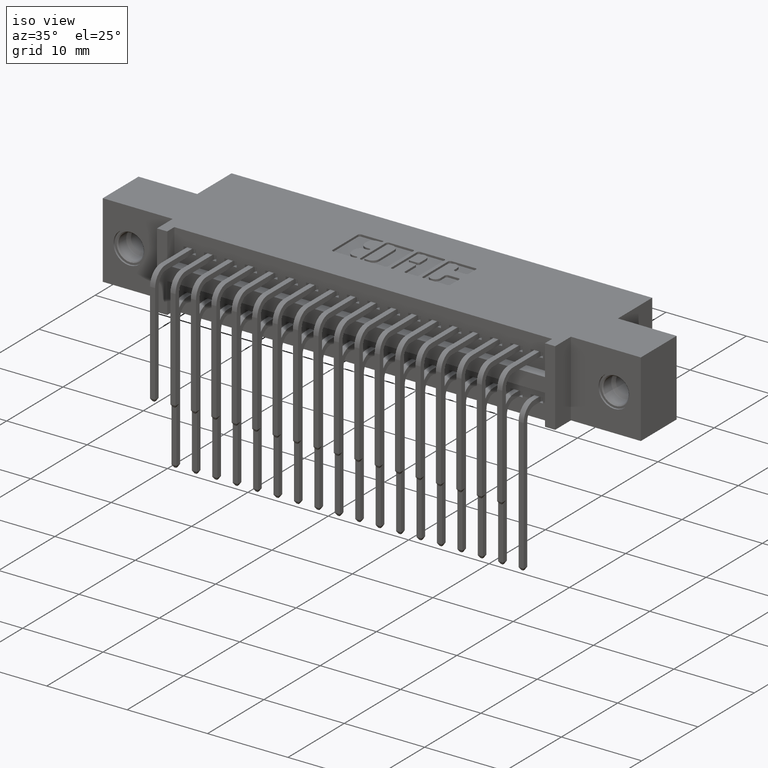
[diagram: clean part render]
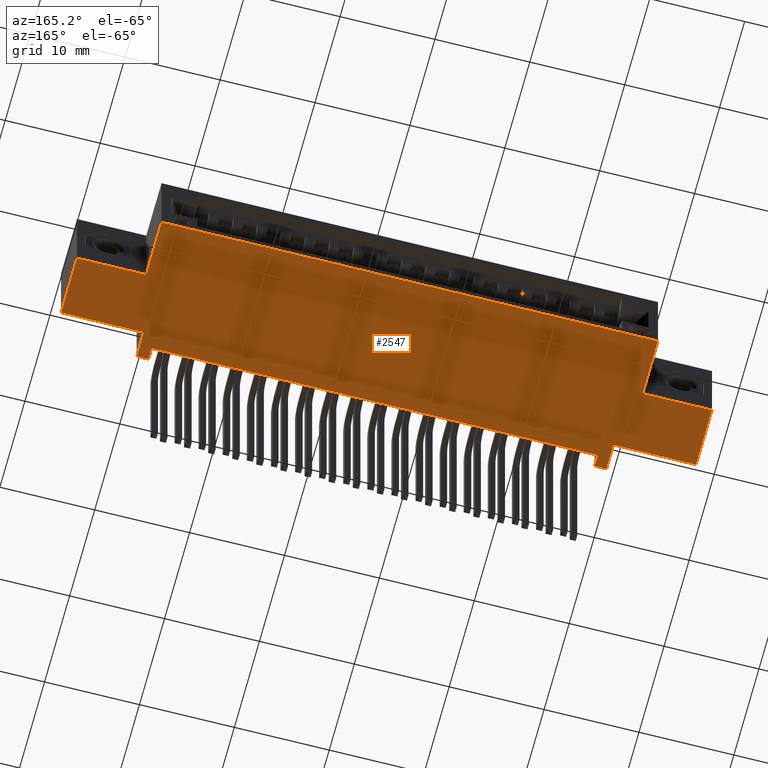
[diagram: tour spotlight — one face highlighted and labeled with its STEP entity id]
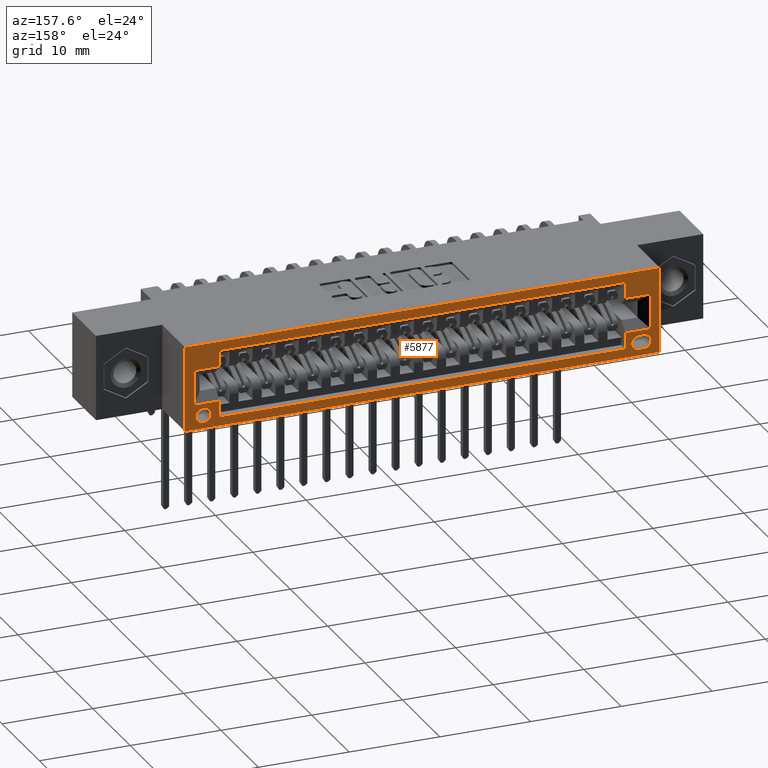
[diagram: tour spotlight — one face highlighted and labeled with its STEP entity id]
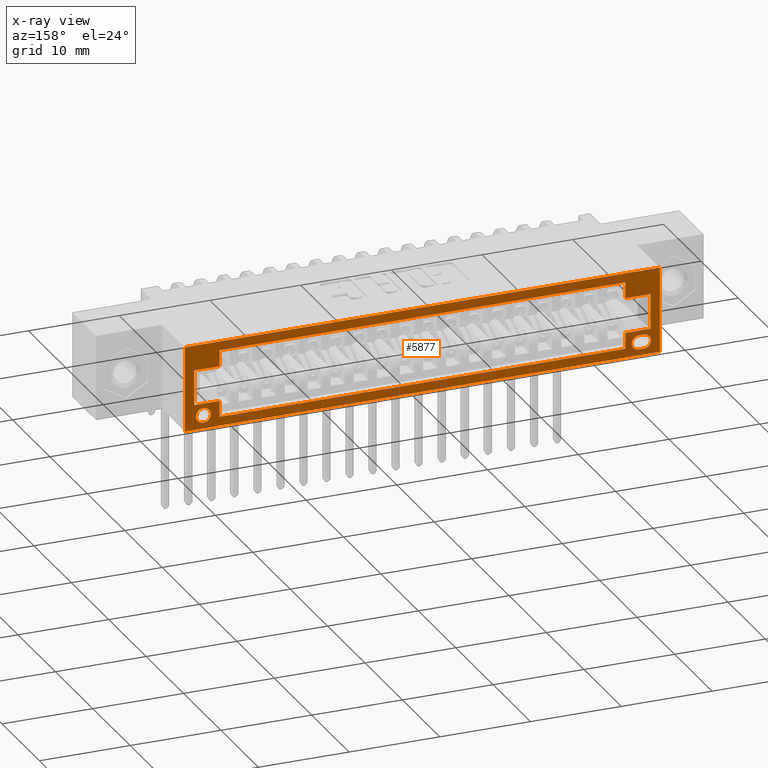
[diagram: x-ray of the same camera — body ghosted, this tour face saturated]
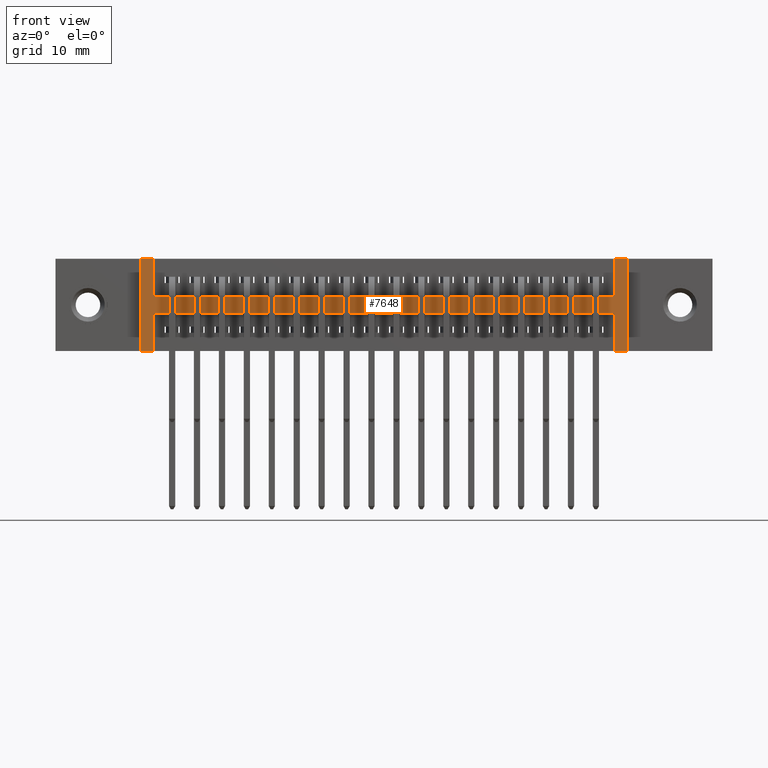
[diagram: tour spotlight — one face highlighted and labeled with its STEP entity id]
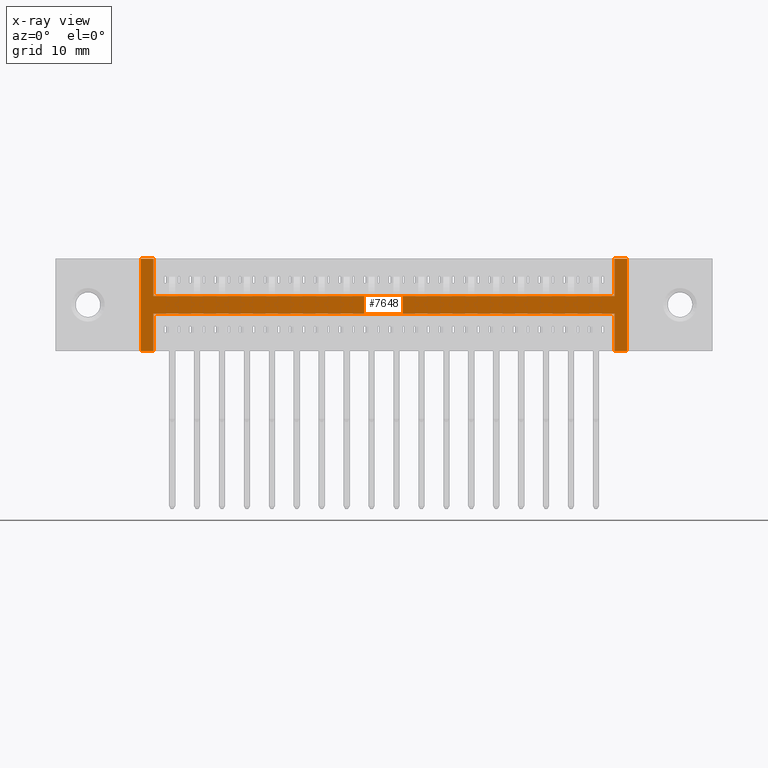
[diagram: x-ray of the same camera — body ghosted, this tour face saturated]
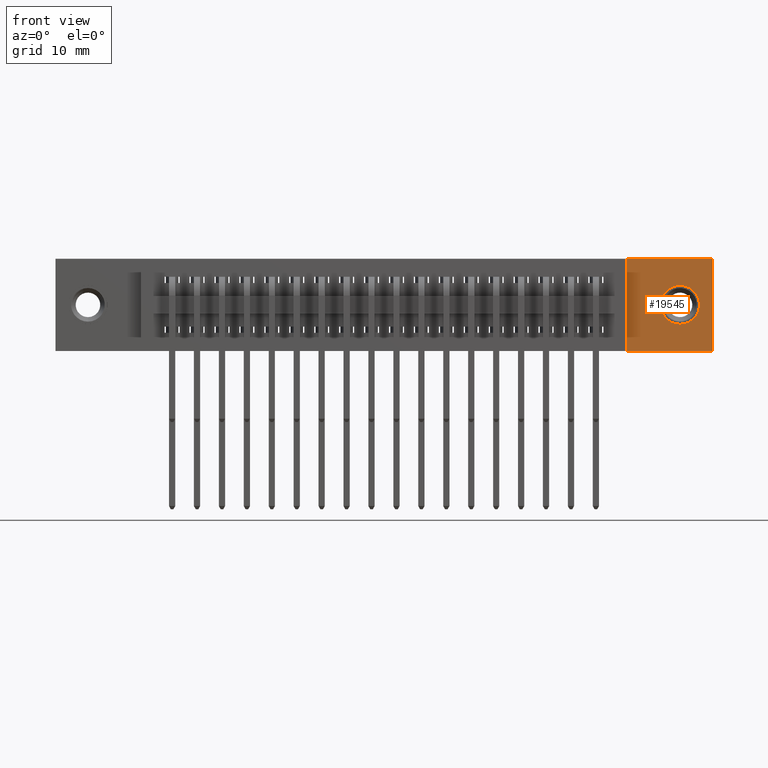
[diagram: tour spotlight — one face highlighted and labeled with its STEP entity id]
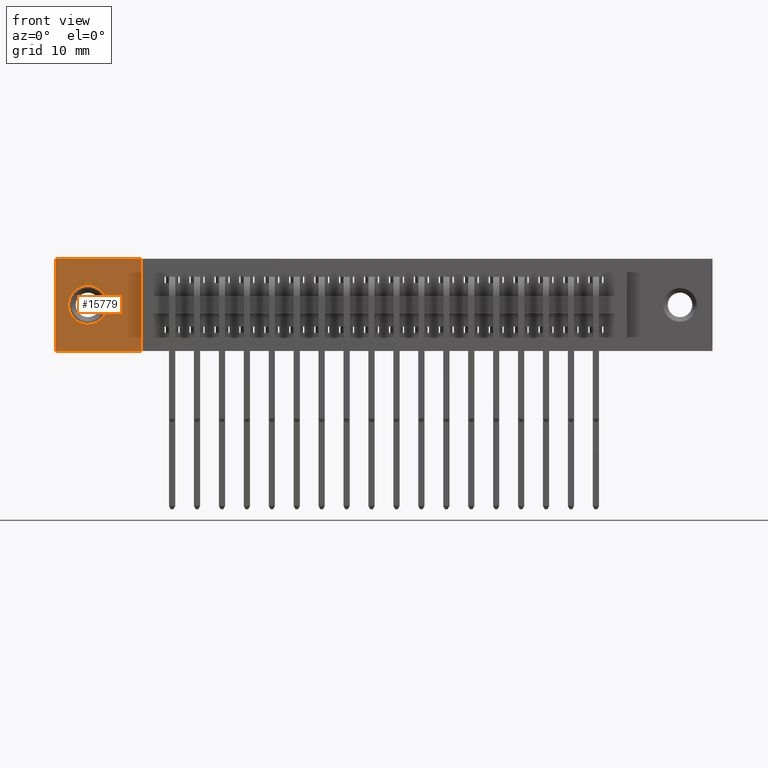
[diagram: tour spotlight — one face highlighted and labeled with its STEP entity id]
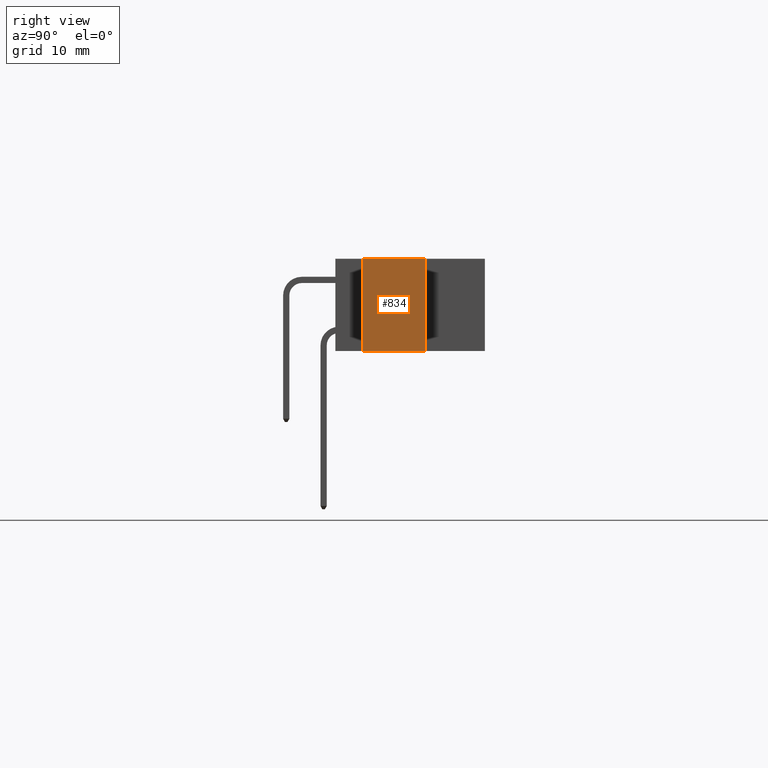
[diagram: tour spotlight — one face highlighted and labeled with its STEP entity id]
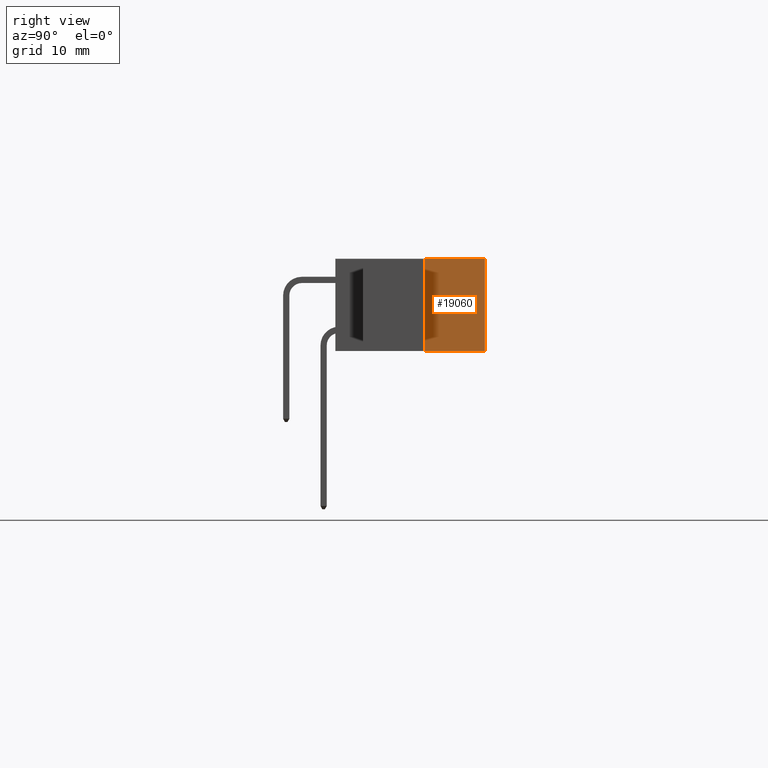
[diagram: tour spotlight — one face highlighted and labeled with its STEP entity id]
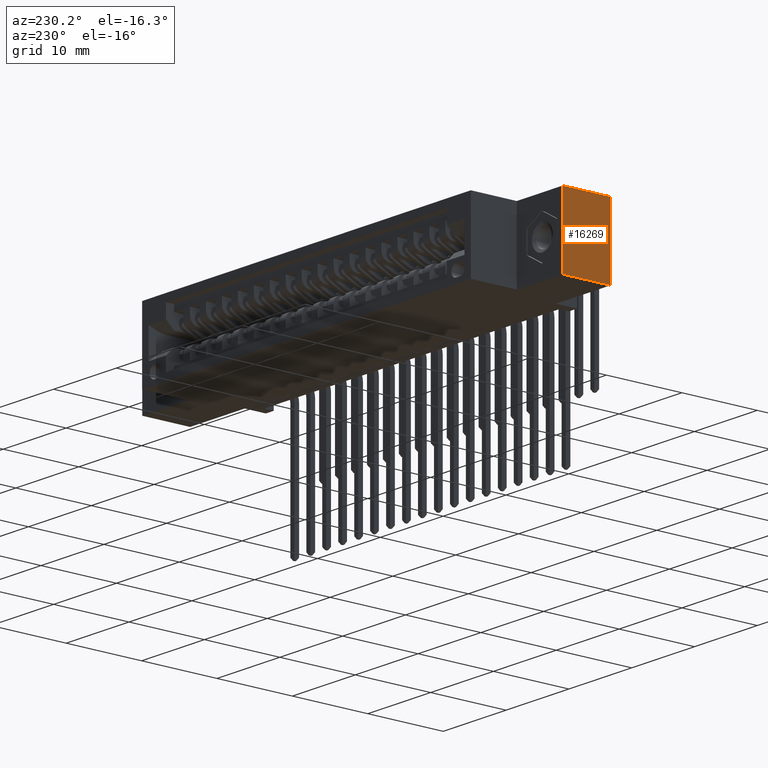
[diagram: tour spotlight — one face highlighted and labeled with its STEP entity id]
A machine part: a face-by-face anatomy tour. The part has 2062 B-rep faces; the first image is the clean iso view, then the 8 largest visible faces are spotlighted one at a time (largest first), each with its STEP entity span.

Face 1 — auxiliary view, entity #2547. In plain terms, the highlighted planar face has unit normal (-0, 0, 1).
Definition (entity closure, byte-faithful):
#63 = CARTESIAN_POINT ( 'NONE',  ( 0.0000000000000000000, 0.5999999999999999800, -0.3700000000000001600 ) ) ;
#188 = ORIENTED_EDGE ( 'NONE', *, *, #15568, .F. ) ;
#568 = VECTOR ( 'NONE', #17103, 39.37007874015748100 ) ;
#734 = ORIENTED_EDGE ( 'NONE', *, *, #8999, .F. ) ;
#786 = CARTESIAN_POINT ( 'NONE',  ( 0.0000000000000000000, 0.0000000000000000000, -0.3700000000000001600 ) ) ;
#791 = VECTOR ( 'NONE', #931, 39.37007874015748100 ) ;
#793 = VERTEX_POINT ( 'NONE', #11587 ) ;
#798 = CARTESIAN_POINT ( 'NONE',  ( 2.242499999999999700, 0.0000000000000000000, -0.3700000000000000000 ) ) ;
#852 = CARTESIAN_POINT ( 'NONE',  ( 0.0000000000000000000, 0.3599999999999999900, -0.3700000000000001600 ) ) ;
#864 = CARTESIAN_POINT ( 'NONE',  ( 2.292499999999999500, 0.1100000000000000000, -0.3699999999999998300 ) ) ;
#931 = DIRECTION ( 'NONE',  ( -0.0000000000000000000, -1.000000000000000000, -0.0000000000000000000 ) ) ;
#991 = VECTOR ( 'NONE', #11796, 39.37007874015748100 ) ;
#1012 = PLANE ( 'NONE',  #3050 ) ;
#1204 = VERTEX_POINT ( 'NONE', #11919 ) ;
#1338 = LINE ( 'NONE', #19716, #791 ) ;
#1343 = ORIENTED_EDGE ( 'NONE', *, *, #4270, .F. ) ;
#1436 = CARTESIAN_POINT ( 'NONE',  ( 0.3924999999999996800, 0.0000000000000000000, -0.3700000000000000000 ) ) ;
#1547 = LINE ( 'NONE', #786, #17754 ) ;
#1559 = CARTESIAN_POINT ( 'NONE',  ( 0.2874999999999999800, 0.3599999999999999900, -0.3700000000000001600 ) ) ;
#1565 = VECTOR ( 'NONE', #20286, 39.37007874015748100 ) ;
#1781 = LINE ( 'NONE', #12927, #4115 ) ;
#1813 = VERTEX_POINT ( 'NONE', #11829 ) ;
#2121 = VERTEX_POINT ( 'NONE', #9373 ) ;
#2165 = ORIENTED_EDGE ( 'NONE', *, *, #4280, .T. ) ;
#2547 = ADVANCED_FACE ( 'NONE', ( #11194 ), #1012, .F. ) ;
#2601 = ORIENTED_EDGE ( 'NONE', *, *, #9146, .F. ) ;
#2766 = EDGE_CURVE ( 'NONE', #793, #1813, #7272, .T. ) ;
#2944 = VECTOR ( 'NONE', #18789, 39.37007874015748100 ) ;
#3036 = VECTOR ( 'NONE', #16403, 39.37007874015748100 ) ;
#3050 = AXIS2_PLACEMENT_3D ( 'NONE', #13746, #19861, #10732 ) ;
#3271 = ORIENTED_EDGE ( 'NONE', *, *, #6973, .T. ) ;
#3279 = VERTEX_POINT ( 'NONE', #1436 ) ;
#3335 = DIRECTION ( 'NONE',  ( -1.000000000000000000, -0.0000000000000000000, -5.183772283992909300E-017 ) ) ;
#3351 = LINE ( 'NONE', #3483, #19420 ) ;
#3483 = CARTESIAN_POINT ( 'NONE',  ( 2.347499999999999700, 0.3599999999999999900, -0.3699999999999997200 ) ) ;
#3647 = DIRECTION ( 'NONE',  ( 1.000000000000000000, 0.0000000000000000000, 3.988099260823742800E-016 ) ) ;
#3669 = EDGE_CURVE ( 'NONE', #14057, #11040, #16393, .T. ) ;
#3919 = DIRECTION ( 'NONE',  ( -1.000000000000000000, 0.0000000000000000000, 9.502079977962658600E-016 ) ) ;
#4115 = VECTOR ( 'NONE', #6728, 39.37007874015748100 ) ;
#4270 = EDGE_CURVE ( 'NONE', #10090, #793, #5713, .T. ) ;
#4280 = EDGE_CURVE ( 'NONE', #14057, #17403, #1338, .T. ) ;
#4626 = CARTESIAN_POINT ( 'NONE',  ( 0.0000000000000000000, 0.0000000000000000000, -0.3700000000000001600 ) ) ;
#5198 = ORIENTED_EDGE ( 'NONE', *, *, #9602, .T. ) ;
#5560 = VERTEX_POINT ( 'NONE', #13485 ) ;
#5713 = LINE ( 'NONE', #852, #17557 ) ;
#5848 = DIRECTION ( 'NONE',  ( -1.000000000000000000, -0.0000000000000000000, -0.0000000000000000000 ) ) ;
#5864 = CARTESIAN_POINT ( 'NONE',  ( 2.242499999999999700, 0.05000000000000000300, -0.3700000000000000000 ) ) ;
#6119 = EDGE_CURVE ( 'NONE', #3279, #5560, #1547, .T. ) ;
#6164 = DIRECTION ( 'NONE',  ( -0.0000000000000000000, -1.000000000000000000, -0.0000000000000000000 ) ) ;
#6673 = ORIENTED_EDGE ( 'NONE', *, *, #6119, .T. ) ;
#6728 = DIRECTION ( 'NONE',  ( -0.0000000000000000000, -1.000000000000000000, -0.0000000000000000000 ) ) ;
#6864 = CARTESIAN_POINT ( 'NONE',  ( 2.292499999999999500, 0.0000000000000000000, -0.3699999999999998300 ) ) ;
#6973 = EDGE_CURVE ( 'NONE', #17403, #7331, #9077, .T. ) ;
#7062 = CARTESIAN_POINT ( 'NONE',  ( 2.634999999999999800, 0.1100000000000000000, -0.3699999999999996600 ) ) ;
#7272 = LINE ( 'NONE', #9626, #2944 ) ;
#7305 = ORIENTED_EDGE ( 'NONE', *, *, #3669, .F. ) ;
#7331 = VERTEX_POINT ( 'NONE', #798 ) ;
#7358 = LINE ( 'NONE', #19454, #3036 ) ;
#7578 = VECTOR ( 'NONE', #6164, 39.37007874015748100 ) ;
#7615 = LINE ( 'NONE', #63, #8587 ) ;
#8053 = VECTOR ( 'NONE', #3647, 39.37007874015748100 ) ;
#8383 = EDGE_CURVE ( 'NONE', #1813, #11818, #16719, .T. ) ;
#8587 = VECTOR ( 'NONE', #3335, 39.37007874015748100 ) ;
#8848 = EDGE_CURVE ( 'NONE', #10090, #1204, #18732, .T. ) ;
#8876 = LINE ( 'NONE', #14882, #16580 ) ;
#8884 = CARTESIAN_POINT ( 'NONE',  ( 0.3424999999999999700, 0.1100000000000000000, -0.3700000000000000000 ) ) ;
#8999 = EDGE_CURVE ( 'NONE', #14441, #2121, #3351, .T. ) ;
#9077 = LINE ( 'NONE', #4626, #13674 ) ;
#9146 = EDGE_CURVE ( 'NONE', #11611, #14441, #8876, .T. ) ;
#9172 = ORIENTED_EDGE ( 'NONE', *, *, #8848, .T. ) ;
#9234 = VERTEX_POINT ( 'NONE', #5864 ) ;
#9306 = ORIENTED_EDGE ( 'NONE', *, *, #9774, .F. ) ;
#9373 = CARTESIAN_POINT ( 'NONE',  ( 2.347499999999999700, 0.5999999999999999800, -0.3699999999999997200 ) ) ;
#9602 = EDGE_CURVE ( 'NONE', #11611, #11040, #1781, .T. ) ;
#9626 = CARTESIAN_POINT ( 'NONE',  ( 0.0000000000000000000, 0.5999999999999999800, -0.3700000000000001600 ) ) ;
#9774 = EDGE_CURVE ( 'NONE', #17097, #9234, #13688, .T. ) ;
#10090 = VERTEX_POINT ( 'NONE', #12429 ) ;
#10273 = ORIENTED_EDGE ( 'NONE', *, *, #16497, .F. ) ;
#10732 = DIRECTION ( 'NONE',  ( 1.000000000000000000, 0.0000000000000000000, 5.183772283992911100E-017 ) ) ;
#10911 = DIRECTION ( 'NONE',  ( -1.000000000000000000, -0.0000000000000000000, -5.183772283992909300E-017 ) ) ;
#11040 = VERTEX_POINT ( 'NONE', #7062 ) ;
#11194 = FACE_OUTER_BOUND ( 'NONE', #18677, .T. ) ;
#11237 = LINE ( 'NONE', #16970, #7578 ) ;
#11488 = DIRECTION ( 'NONE',  ( -0.0000000000000000000, 1.000000000000000000, -0.0000000000000000000 ) ) ;
#11584 = CARTESIAN_POINT ( 'NONE',  ( 2.347499999999999700, 0.3599999999999999900, -0.3699999999999997200 ) ) ;
#11587 = CARTESIAN_POINT ( 'NONE',  ( 0.0000000000000000000, 0.3599999999999999900, -0.3700000000000001600 ) ) ;
#11611 = VERTEX_POINT ( 'NONE', #13010 ) ;
#11796 = DIRECTION ( 'NONE',  ( 1.000000000000000000, 0.0000000000000000000, 0.0000000000000000000 ) ) ;
#11818 = VERTEX_POINT ( 'NONE', #8884 ) ;
#11829 = CARTESIAN_POINT ( 'NONE',  ( 0.0000000000000000000, 0.1100000000000000000, -0.3700000000000001600 ) ) ;
#11919 = CARTESIAN_POINT ( 'NONE',  ( 0.2874999999999999800, 0.5999999999999999800, -0.3700000000000001600 ) ) ;
#12363 = VECTOR ( 'NONE', #18030, 39.37007874015748100 ) ;
#12429 = CARTESIAN_POINT ( 'NONE',  ( 0.2874999999999999800, 0.3599999999999999900, -0.3700000000000001600 ) ) ;
#12653 = ORIENTED_EDGE ( 'NONE', *, *, #15808, .F. ) ;
#12927 = CARTESIAN_POINT ( 'NONE',  ( 2.634999999999999800, 0.5999999999999999800, -0.3700000000000000000 ) ) ;
#13010 = CARTESIAN_POINT ( 'NONE',  ( 2.634999999999999800, 0.3600000000000000400, -0.3700000000000000000 ) ) ;
#13485 = CARTESIAN_POINT ( 'NONE',  ( 0.3424999999999999700, 0.0000000000000000000, -0.3700000000000001600 ) ) ;
#13536 = DIRECTION ( 'NONE',  ( -1.000000000000000000, -0.0000000000000000000, -5.183772283992909300E-017 ) ) ;
#13674 = VECTOR ( 'NONE', #10911, 39.37007874015748100 ) ;
#13688 = LINE ( 'NONE', #19379, #991 ) ;
#13746 = CARTESIAN_POINT ( 'NONE',  ( 0.0000000000000000000, 0.5999999999999999800, -0.3700000000000001600 ) ) ;
#14057 = VERTEX_POINT ( 'NONE', #864 ) ;
#14441 = VERTEX_POINT ( 'NONE', #11584 ) ;
#14636 = CARTESIAN_POINT ( 'NONE',  ( 0.0000000000000000000, 0.1100000000000000000, -0.3700000000000001600 ) ) ;
#14882 = CARTESIAN_POINT ( 'NONE',  ( 2.634999999999999800, 0.3599999999999999900, -0.3700000000000000000 ) ) ;
#15315 = ORIENTED_EDGE ( 'NONE', *, *, #8383, .F. ) ;
#15564 = CARTESIAN_POINT ( 'NONE',  ( 0.3924999999999996800, 0.05000000000000000300, -0.3700000000000000000 ) ) ;
#15568 = EDGE_CURVE ( 'NONE', #2121, #1204, #7615, .T. ) ;
#15808 = EDGE_CURVE ( 'NONE', #9234, #7331, #7358, .T. ) ;
#16393 = LINE ( 'NONE', #16496, #12363 ) ;
#16403 = DIRECTION ( 'NONE',  ( -0.0000000000000000000, -1.000000000000000000, -0.0000000000000000000 ) ) ;
#16496 = CARTESIAN_POINT ( 'NONE',  ( 2.634999999999999800, 0.1100000000000000000, -0.3699999999999996600 ) ) ;
#16497 = EDGE_CURVE ( 'NONE', #11818, #5560, #11237, .T. ) ;
#16580 = VECTOR ( 'NONE', #3919, 39.37007874015748100 ) ;
#16719 = LINE ( 'NONE', #14636, #8053 ) ;
#16745 = CARTESIAN_POINT ( 'NONE',  ( 0.3924999999999996800, 0.05000000000000000300, -0.3700000000000000000 ) ) ;
#16970 = CARTESIAN_POINT ( 'NONE',  ( 0.3424999999999999700, 0.1100000000000000000, -0.3700000000000000000 ) ) ;
#17072 = ORIENTED_EDGE ( 'NONE', *, *, #18376, .T. ) ;
#17097 = VERTEX_POINT ( 'NONE', #16745 ) ;
#17103 = DIRECTION ( 'NONE',  ( -0.0000000000000000000, -1.000000000000000000, -0.0000000000000000000 ) ) ;
#17366 = LINE ( 'NONE', #15564, #568 ) ;
#17403 = VERTEX_POINT ( 'NONE', #6864 ) ;
#17557 = VECTOR ( 'NONE', #5848, 39.37007874015748100 ) ;
#17754 = VECTOR ( 'NONE', #13536, 39.37007874015748100 ) ;
#18030 = DIRECTION ( 'NONE',  ( 1.000000000000000000, -0.0000000000000000000, 3.988099260823742800E-016 ) ) ;
#18376 = EDGE_CURVE ( 'NONE', #17097, #3279, #17366, .T. ) ;
#18677 = EDGE_LOOP ( 'NONE', ( #7305, #2165, #3271, #12653, #9306, #17072, #6673, #10273, #15315, #19625, #1343, #9172, #188, #734, #2601, #5198 ) ) ;
#18732 = LINE ( 'NONE', #1559, #1565 ) ;
#18789 = DIRECTION ( 'NONE',  ( -0.0000000000000000000, -1.000000000000000000, -0.0000000000000000000 ) ) ;
#19379 = CARTESIAN_POINT ( 'NONE',  ( 0.3924999999999996800, 0.05000000000000000300, -0.3700000000000000000 ) ) ;
#19420 = VECTOR ( 'NONE', #11488, 39.37007874015748100 ) ;
#19454 = CARTESIAN_POINT ( 'NONE',  ( 2.242499999999999700, 0.05000000000000000300, -0.3700000000000000000 ) ) ;
#19625 = ORIENTED_EDGE ( 'NONE', *, *, #2766, .F. ) ;
#19716 = CARTESIAN_POINT ( 'NONE',  ( 2.292499999999999500, 0.1100000000000000000, -0.3699999999999998300 ) ) ;
#19861 = DIRECTION ( 'NONE',  ( -5.183772283992911100E-017, 0.0000000000000000000, 1.000000000000000000 ) ) ;
#20286 = DIRECTION ( 'NONE',  ( -0.0000000000000000000, 1.000000000000000000, -0.0000000000000000000 ) ) ;

Face 2 — auxiliary view, entity #5877. An x-ray twin of the same camera follows (body ghosted, this face saturated) — the face is partly hidden behind the body. In plain terms, the highlighted planar face has unit normal (0, -1, 0).
Definition (entity closure, byte-faithful):
#2 = LINE ( 'NONE', #12906, #8183 ) ;
#62 = VERTEX_POINT ( 'NONE', #5088 ) ;
#63 = CARTESIAN_POINT ( 'NONE',  ( 0.0000000000000000000, 0.5999999999999999800, -0.3700000000000001600 ) ) ;
#75 = DIRECTION ( 'NONE',  ( 0.0000000000000000000, 0.0000000000000000000, 1.000000000000000000 ) ) ;
#204 = DIRECTION ( 'NONE',  ( 0.0000000000000000000, 1.000000000000000000, 0.0000000000000000000 ) ) ;
#218 = VECTOR ( 'NONE', #1030, 39.37007874015748100 ) ;
#356 = ORIENTED_EDGE ( 'NONE', *, *, #2216, .F. ) ;
#418 = VECTOR ( 'NONE', #13820, 39.37007874015748100 ) ;
#567 = EDGE_CURVE ( 'NONE', #4795, #18230, #12982, .T. ) ;
#660 = VECTOR ( 'NONE', #17017, 39.37007874015748100 ) ;
#671 = EDGE_CURVE ( 'NONE', #3615, #16933, #15611, .T. ) ;
#953 = AXIS2_PLACEMENT_3D ( 'NONE', #6561, #17372, #8160 ) ;
#1030 = DIRECTION ( 'NONE',  ( -1.000000000000000000, 0.0000000000000000000, 0.0000000000000000000 ) ) ;
#1204 = VERTEX_POINT ( 'NONE', #11919 ) ;
#1238 = VERTEX_POINT ( 'NONE', #12061 ) ;
#1295 = EDGE_CURVE ( 'NONE', #18230, #13517, #4887, .T. ) ;
#1544 = EDGE_CURVE ( 'NONE', #13669, #62, #9333, .T. ) ;
#1560 = ORIENTED_EDGE ( 'NONE', *, *, #12011, .F. ) ;
#1669 = EDGE_LOOP ( 'NONE', ( #16180, #10317 ) ) ;
#2104 = CARTESIAN_POINT ( 'NONE',  ( 0.3564999999999999300, 0.5999999999999999800, -0.2820000000000000800 ) ) ;
#2121 = VERTEX_POINT ( 'NONE', #9373 ) ;
#2200 = CARTESIAN_POINT ( 'NONE',  ( 2.307500000000000100, 0.5999999999999999800, -0.2610000000000001800 ) ) ;
#2216 = EDGE_CURVE ( 'NONE', #6578, #20025, #4335, .T. ) ;
#2473 = ORIENTED_EDGE ( 'NONE', *, *, #1295, .T. ) ;
#2584 = ORIENTED_EDGE ( 'NONE', *, *, #18770, .T. ) ;
#2756 = CARTESIAN_POINT ( 'NONE',  ( 0.0000000000000000000, 0.5999999999999999800, -0.1089999999999999900 ) ) ;
#3234 = VERTEX_POINT ( 'NONE', #12468 ) ;
#3335 = DIRECTION ( 'NONE',  ( -1.000000000000000000, -0.0000000000000000000, -5.183772283992909300E-017 ) ) ;
#3459 = VERTEX_POINT ( 'NONE', #5164 ) ;
#3472 = VERTEX_POINT ( 'NONE', #14493 ) ;
#3509 = CARTESIAN_POINT ( 'NONE',  ( 0.0000000000000000000, 0.5999999999999999800, -0.1089999999999999900 ) ) ;
#3551 = DIRECTION ( 'NONE',  ( 0.0000000000000000000, 0.0000000000000000000, 1.000000000000000000 ) ) ;
#3615 = VERTEX_POINT ( 'NONE', #13353 ) ;
#3990 = CARTESIAN_POINT ( 'NONE',  ( 0.0000000000000000000, 0.5999999999999999800, -0.2610000000000001800 ) ) ;
#4027 = CARTESIAN_POINT ( 'NONE',  ( 0.3274999999999997400, 0.5999999999999999800, -0.2610000000000001800 ) ) ;
#4042 = EDGE_CURVE ( 'NONE', #3615, #1204, #10141, .T. ) ;
#4132 = CIRCLE ( 'NONE', #17388, 0.03200000000000033400 ) ;
#4335 = CIRCLE ( 'NONE', #15411, 0.03099999999999998900 ) ;
#4450 = CARTESIAN_POINT ( 'NONE',  ( 0.4375000000000010000, 0.5999999999999999800, -0.03900000000000072900 ) ) ;
#4453 = VECTOR ( 'NONE', #18257, 39.37007874015748100 ) ;
#4598 = CARTESIAN_POINT ( 'NONE',  ( 0.4374999999999998900, 0.5999999999999999800, -0.2974999999999999900 ) ) ;
#4753 = EDGE_CURVE ( 'NONE', #7511, #18844, #9864, .T. ) ;
#4795 = VERTEX_POINT ( 'NONE', #19358 ) ;
#4812 = VECTOR ( 'NONE', #8545, 39.37007874015748100 ) ;
#4887 = LINE ( 'NONE', #19831, #10560 ) ;
#5088 = CARTESIAN_POINT ( 'NONE',  ( 2.267499999999999600, 0.5999999999999999800, -0.3450000000000004200 ) ) ;
#5164 = CARTESIAN_POINT ( 'NONE',  ( 0.4375000000000010000, 0.5999999999999999800, -0.03900000000000072900 ) ) ;
#5270 = EDGE_CURVE ( 'NONE', #62, #13669, #4132, .T. ) ;
#5345 = VECTOR ( 'NONE', #17016, 39.37007874015748100 ) ;
#5397 = CARTESIAN_POINT ( 'NONE',  ( 0.0000000000000000000, 0.5999999999999999800, 0.0000000000000000000 ) ) ;
#5462 = LINE ( 'NONE', #10634, #4453 ) ;
#5478 = LINE ( 'NONE', #3990, #17348 ) ;
#5707 = EDGE_CURVE ( 'NONE', #3459, #13517, #17770, .T. ) ;
#5877 = ADVANCED_FACE ( 'NONE', ( #6656, #18498, #10348, #6194 ), #12689, .F. ) ;
#5883 = CARTESIAN_POINT ( 'NONE',  ( 2.197499999999999800, 0.5999999999999999800, -0.1089999999999999900 ) ) ;
#5948 = ORIENTED_EDGE ( 'NONE', *, *, #20015, .F. ) ;
#6194 = FACE_BOUND ( 'NONE', #7866, .T. ) ;
#6208 = VECTOR ( 'NONE', #17773, 39.37007874015748100 ) ;
#6215 = ORIENTED_EDGE ( 'NONE', *, *, #15943, .F. ) ;
#6561 = CARTESIAN_POINT ( 'NONE',  ( 2.267499999999999600, 0.5999999999999999800, -0.3130000000000000600 ) ) ;
#6578 = VERTEX_POINT ( 'NONE', #13107 ) ;
#6656 = FACE_BOUND ( 'NONE', #1669, .T. ) ;
#6914 = EDGE_LOOP ( 'NONE', ( #10395, #356, #16958, #5948 ) ) ;
#6953 = CARTESIAN_POINT ( 'NONE',  ( 2.197499999999999800, 0.5999999999999999800, -0.2974999999999998800 ) ) ;
#7015 = CARTESIAN_POINT ( 'NONE',  ( 2.307500000000000100, 0.5999999999999999800, -0.3700000000000001600 ) ) ;
#7446 = EDGE_CURVE ( 'NONE', #15748, #3234, #9058, .T. ) ;
#7511 = VERTEX_POINT ( 'NONE', #16952 ) ;
#7615 = LINE ( 'NONE', #63, #8587 ) ;
#7673 = LINE ( 'NONE', #13011, #15388 ) ;
#7866 = EDGE_LOOP ( 'NONE', ( #19530, #9726, #13392, #8817, #19983, #11717, #2473, #11804, #1560, #16016, #8569, #2584 ) ) ;
#7946 = VERTEX_POINT ( 'NONE', #19506 ) ;
#8073 = DIRECTION ( 'NONE',  ( 0.0000000000000000000, -1.000000000000000000, 0.0000000000000000000 ) ) ;
#8112 = CARTESIAN_POINT ( 'NONE',  ( 2.197499999999999800, 0.5999999999999999800, -0.2610000000000001800 ) ) ;
#8154 = AXIS2_PLACEMENT_3D ( 'NONE', #8614, #19328, #10175 ) ;
#8160 = DIRECTION ( 'NONE',  ( 0.0000000000000000000, 0.0000000000000000000, 1.000000000000000000 ) ) ;
#8183 = VECTOR ( 'NONE', #15975, 39.37007874015748100 ) ;
#8437 = VERTEX_POINT ( 'NONE', #2200 ) ;
#8516 = VERTEX_POINT ( 'NONE', #4027 ) ;
#8545 = DIRECTION ( 'NONE',  ( 0.0000000000000000000, 0.0000000000000000000, 1.000000000000000000 ) ) ;
#8569 = ORIENTED_EDGE ( 'NONE', *, *, #14678, .T. ) ;
#8580 = CARTESIAN_POINT ( 'NONE',  ( 0.4375000000000010000, 0.5999999999999999800, -0.3310000000000007400 ) ) ;
#8587 = VECTOR ( 'NONE', #3335, 39.37007874015748100 ) ;
#8588 = VECTOR ( 'NONE', #17793, 39.37007874015748100 ) ;
#8614 = CARTESIAN_POINT ( 'NONE',  ( 0.3784999999999999500, 0.5999999999999999800, -0.3130000000000000600 ) ) ;
#8667 = ORIENTED_EDGE ( 'NONE', *, *, #15568, .T. ) ;
#8800 = DIRECTION ( 'NONE',  ( 1.000000000000000000, 0.0000000000000000000, 0.0000000000000000000 ) ) ;
#8817 = ORIENTED_EDGE ( 'NONE', *, *, #19244, .T. ) ;
#8992 = EDGE_CURVE ( 'NONE', #18844, #3472, #7673, .T. ) ;
#9058 = LINE ( 'NONE', #2756, #418 ) ;
#9136 = VECTOR ( 'NONE', #16818, 39.37007874015748100 ) ;
#9333 = CIRCLE ( 'NONE', #953, 0.03200000000000033400 ) ;
#9373 = CARTESIAN_POINT ( 'NONE',  ( 2.347499999999999700, 0.5999999999999999800, -0.3699999999999997200 ) ) ;
#9517 = LINE ( 'NONE', #6953, #4812 ) ;
#9726 = ORIENTED_EDGE ( 'NONE', *, *, #4753, .F. ) ;
#9769 = LINE ( 'NONE', #4598, #660 ) ;
#9789 = DIRECTION ( 'NONE',  ( 0.0000000000000000000, 1.000000000000000000, 0.0000000000000000000 ) ) ;
#9864 = LINE ( 'NONE', #8580, #6208 ) ;
#9902 = CARTESIAN_POINT ( 'NONE',  ( 0.3564999999999999800, 0.5999999999999999800, -0.3130000000000000600 ) ) ;
#10141 = LINE ( 'NONE', #11600, #13766 ) ;
#10152 = EDGE_CURVE ( 'NONE', #20025, #7946, #19127, .T. ) ;
#10175 = DIRECTION ( 'NONE',  ( 0.0000000000000000000, 0.0000000000000000000, 1.000000000000000000 ) ) ;
#10242 = CARTESIAN_POINT ( 'NONE',  ( 2.347499999999999700, 0.5999999999999999800, 0.0000000000000000000 ) ) ;
#10305 = EDGE_CURVE ( 'NONE', #8437, #4795, #16777, .T. ) ;
#10317 = ORIENTED_EDGE ( 'NONE', *, *, #5270, .F. ) ;
#10348 = FACE_OUTER_BOUND ( 'NONE', #13999, .T. ) ;
#10395 = ORIENTED_EDGE ( 'NONE', *, *, #10152, .F. ) ;
#10560 = VECTOR ( 'NONE', #10700, 39.37007874015748100 ) ;
#10634 = CARTESIAN_POINT ( 'NONE',  ( 0.3274999999999997400, 0.5999999999999999800, -0.3700000000000001600 ) ) ;
#10700 = DIRECTION ( 'NONE',  ( 0.0000000000000000000, 0.0000000000000000000, 1.000000000000000000 ) ) ;
#10786 = VERTEX_POINT ( 'NONE', #8112 ) ;
#11283 = CARTESIAN_POINT ( 'NONE',  ( 2.267499999999999600, 0.5999999999999999800, -0.2809999999999996900 ) ) ;
#11341 = DIRECTION ( 'NONE',  ( 1.000000000000000000, 0.0000000000000000000, 3.104372720073026700E-015 ) ) ;
#11478 = DIRECTION ( 'NONE',  ( 0.0000000000000000000, 0.0000000000000000000, 1.000000000000000000 ) ) ;
#11600 = CARTESIAN_POINT ( 'NONE',  ( 0.2874999999999999800, 0.5999999999999999800, 0.0000000000000000000 ) ) ;
#11717 = ORIENTED_EDGE ( 'NONE', *, *, #567, .T. ) ;
#11804 = ORIENTED_EDGE ( 'NONE', *, *, #5707, .F. ) ;
#11919 = CARTESIAN_POINT ( 'NONE',  ( 0.2874999999999999800, 0.5999999999999999800, -0.3700000000000001600 ) ) ;
#12011 = EDGE_CURVE ( 'NONE', #15748, #3459, #9769, .T. ) ;
#12061 = CARTESIAN_POINT ( 'NONE',  ( 0.3784999999999999500, 0.5999999999999999800, -0.3440000000000000800 ) ) ;
#12468 = CARTESIAN_POINT ( 'NONE',  ( 0.3274999999999997400, 0.5999999999999999800, -0.1089999999999999900 ) ) ;
#12689 = PLANE ( 'NONE',  #18672 ) ;
#12737 = CARTESIAN_POINT ( 'NONE',  ( 0.3564999999999999800, 0.5999999999999999800, -0.3440000000000000800 ) ) ;
#12906 = CARTESIAN_POINT ( 'NONE',  ( 0.0000000000000000000, 0.5999999999999999800, -0.2610000000000001800 ) ) ;
#12982 = LINE ( 'NONE', #3509, #218 ) ;
#13011 = CARTESIAN_POINT ( 'NONE',  ( 0.4374999999999998900, 0.5999999999999999800, -0.2974999999999999900 ) ) ;
#13107 = CARTESIAN_POINT ( 'NONE',  ( 0.3564999999999999800, 0.5999999999999999800, -0.3440000000000000800 ) ) ;
#13124 = DIRECTION ( 'NONE',  ( 0.0000000000000000000, 0.0000000000000000000, -1.000000000000000000 ) ) ;
#13353 = CARTESIAN_POINT ( 'NONE',  ( 0.2874999999999999800, 0.5999999999999999800, 0.0000000000000000000 ) ) ;
#13392 = ORIENTED_EDGE ( 'NONE', *, *, #16856, .T. ) ;
#13479 = DIRECTION ( 'NONE',  ( 1.000000000000000000, 0.0000000000000000000, 0.0000000000000000000 ) ) ;
#13517 = VERTEX_POINT ( 'NONE', #16972 ) ;
#13574 = ORIENTED_EDGE ( 'NONE', *, *, #4042, .F. ) ;
#13669 = VERTEX_POINT ( 'NONE', #11283 ) ;
#13766 = VECTOR ( 'NONE', #13124, 39.37007874015748100 ) ;
#13820 = DIRECTION ( 'NONE',  ( -1.000000000000000000, 0.0000000000000000000, 0.0000000000000000000 ) ) ;
#13999 = EDGE_LOOP ( 'NONE', ( #20162, #6215, #8667, #13574 ) ) ;
#14280 = EDGE_CURVE ( 'NONE', #1238, #6578, #16389, .T. ) ;
#14493 = CARTESIAN_POINT ( 'NONE',  ( 0.4374999999999998900, 0.5999999999999999800, -0.2610000000000001800 ) ) ;
#14678 = EDGE_CURVE ( 'NONE', #3234, #8516, #5462, .T. ) ;
#15388 = VECTOR ( 'NONE', #3551, 39.37007874015748100 ) ;
#15411 = AXIS2_PLACEMENT_3D ( 'NONE', #9902, #204, #11478 ) ;
#15434 = VECTOR ( 'NONE', #20317, 39.37007874015748100 ) ;
#15568 = EDGE_CURVE ( 'NONE', #2121, #1204, #7615, .T. ) ;
#15582 = VECTOR ( 'NONE', #11341, 39.37007874015748100 ) ;
#15611 = LINE ( 'NONE', #5397, #18712 ) ;
#15743 = CARTESIAN_POINT ( 'NONE',  ( 0.0000000000000000000, 0.5999999999999999800, -0.3700000000000001600 ) ) ;
#15748 = VERTEX_POINT ( 'NONE', #19319 ) ;
#15877 = CARTESIAN_POINT ( 'NONE',  ( 0.3564999999999999300, 0.5999999999999999800, -0.2820000000000000800 ) ) ;
#15943 = EDGE_CURVE ( 'NONE', #2121, #16933, #17695, .T. ) ;
#15975 = DIRECTION ( 'NONE',  ( 1.000000000000000000, 0.0000000000000000000, 0.0000000000000000000 ) ) ;
#16016 = ORIENTED_EDGE ( 'NONE', *, *, #7446, .T. ) ;
#16180 = ORIENTED_EDGE ( 'NONE', *, *, #1544, .F. ) ;
#16389 = LINE ( 'NONE', #12737, #15434 ) ;
#16777 = LINE ( 'NONE', #7015, #8588 ) ;
#16818 = DIRECTION ( 'NONE',  ( 1.000000000000000000, 0.0000000000000000000, 2.522302835059335900E-016 ) ) ;
#16856 = EDGE_CURVE ( 'NONE', #7511, #10786, #9517, .T. ) ;
#16933 = VERTEX_POINT ( 'NONE', #10242 ) ;
#16952 = CARTESIAN_POINT ( 'NONE',  ( 2.197499999999999800, 0.5999999999999999800, -0.3310000000000002400 ) ) ;
#16958 = ORIENTED_EDGE ( 'NONE', *, *, #14280, .F. ) ;
#16972 = CARTESIAN_POINT ( 'NONE',  ( 2.197499999999999800, 0.5999999999999999800, -0.03900000000000028400 ) ) ;
#17016 = DIRECTION ( 'NONE',  ( -7.383372955849365900E-016, -0.0000000000000000000, 1.000000000000000000 ) ) ;
#17017 = DIRECTION ( 'NONE',  ( 0.0000000000000000000, 0.0000000000000000000, 1.000000000000000000 ) ) ;
#17348 = VECTOR ( 'NONE', #13479, 39.37007874015748100 ) ;
#17372 = DIRECTION ( 'NONE',  ( 0.0000000000000000000, 1.000000000000000000, 0.0000000000000000000 ) ) ;
#17388 = AXIS2_PLACEMENT_3D ( 'NONE', #18937, #9789, #75 ) ;
#17695 = LINE ( 'NONE', #19991, #5345 ) ;
#17770 = LINE ( 'NONE', #4450, #9136 ) ;
#17773 = DIRECTION ( 'NONE',  ( -1.000000000000000000, -0.0000000000000000000, -2.716326130063900400E-016 ) ) ;
#17793 = DIRECTION ( 'NONE',  ( 0.0000000000000000000, 0.0000000000000000000, 1.000000000000000000 ) ) ;
#18218 = CARTESIAN_POINT ( 'NONE',  ( 0.4375000000000010000, 0.5999999999999999800, -0.3310000000000007400 ) ) ;
#18230 = VERTEX_POINT ( 'NONE', #5883 ) ;
#18257 = DIRECTION ( 'NONE',  ( 0.0000000000000000000, 0.0000000000000000000, -1.000000000000000000 ) ) ;
#18498 = FACE_BOUND ( 'NONE', #6914, .T. ) ;
#18672 = AXIS2_PLACEMENT_3D ( 'NONE', #15743, #8073, #18798 ) ;
#18712 = VECTOR ( 'NONE', #8800, 39.37007874015748100 ) ;
#18770 = EDGE_CURVE ( 'NONE', #8516, #3472, #5478, .T. ) ;
#18798 = DIRECTION ( 'NONE',  ( 0.0000000000000000000, -0.0000000000000000000, -1.000000000000000000 ) ) ;
#18844 = VERTEX_POINT ( 'NONE', #18218 ) ;
#18937 = CARTESIAN_POINT ( 'NONE',  ( 2.267499999999999600, 0.5999999999999999800, -0.3130000000000000600 ) ) ;
#18967 = CIRCLE ( 'NONE', #8154, 0.03100000000000002400 ) ;
#19127 = LINE ( 'NONE', #15877, #15582 ) ;
#19244 = EDGE_CURVE ( 'NONE', #10786, #8437, #2, .T. ) ;
#19319 = CARTESIAN_POINT ( 'NONE',  ( 0.4374999999999998900, 0.5999999999999999800, -0.1089999999999999900 ) ) ;
#19328 = DIRECTION ( 'NONE',  ( 0.0000000000000000000, 1.000000000000000000, 0.0000000000000000000 ) ) ;
#19358 = CARTESIAN_POINT ( 'NONE',  ( 2.307500000000000100, 0.5999999999999999800, -0.1089999999999999900 ) ) ;
#19506 = CARTESIAN_POINT ( 'NONE',  ( 0.3784999999999999500, 0.5999999999999999800, -0.2820000000000000300 ) ) ;
#19530 = ORIENTED_EDGE ( 'NONE', *, *, #8992, .F. ) ;
#19831 = CARTESIAN_POINT ( 'NONE',  ( 2.197499999999999800, 0.5999999999999999800, -0.2974999999999998800 ) ) ;
#19983 = ORIENTED_EDGE ( 'NONE', *, *, #10305, .T. ) ;
#19991 = CARTESIAN_POINT ( 'NONE',  ( 2.347499999999999700, 0.5999999999999999800, 0.0000000000000000000 ) ) ;
#20015 = EDGE_CURVE ( 'NONE', #7946, #1238, #18967, .T. ) ;
#20025 = VERTEX_POINT ( 'NONE', #2104 ) ;
#20162 = ORIENTED_EDGE ( 'NONE', *, *, #671, .T. ) ;
#20317 = DIRECTION ( 'NONE',  ( -1.000000000000000000, -0.0000000000000000000, -0.0000000000000000000 ) ) ;

Face 3 — front view, entity #7648. An x-ray twin of the same camera follows (body ghosted, this face saturated) — the face is partly hidden behind the body. In plain terms, the highlighted planar face has unit normal (0, -1, 0).
Definition (entity closure, byte-faithful):
#113 = EDGE_CURVE ( 'NONE', #18808, #19796, #20150, .T. ) ;
#476 = VECTOR ( 'NONE', #12149, 39.37007874015748100 ) ;
#501 = EDGE_CURVE ( 'NONE', #5560, #18213, #1300, .T. ) ;
#667 = ORIENTED_EDGE ( 'NONE', *, *, #9388, .F. ) ;
#786 = CARTESIAN_POINT ( 'NONE',  ( 0.0000000000000000000, 0.0000000000000000000, -0.3700000000000001600 ) ) ;
#798 = CARTESIAN_POINT ( 'NONE',  ( 2.242499999999999700, 0.0000000000000000000, -0.3700000000000000000 ) ) ;
#1300 = LINE ( 'NONE', #8302, #17527 ) ;
#1436 = CARTESIAN_POINT ( 'NONE',  ( 0.3924999999999996800, 0.0000000000000000000, -0.3700000000000000000 ) ) ;
#1547 = LINE ( 'NONE', #786, #17754 ) ;
#2384 = CARTESIAN_POINT ( 'NONE',  ( 2.242499999999999700, 0.0000000000000000000, -0.2200000000000000000 ) ) ;
#2688 = DIRECTION ( 'NONE',  ( -0.0000000000000000000, -0.0000000000000000000, 1.000000000000000000 ) ) ;
#3279 = VERTEX_POINT ( 'NONE', #1436 ) ;
#3844 = VECTOR ( 'NONE', #15477, 39.37007874015748100 ) ;
#3894 = VERTEX_POINT ( 'NONE', #20000 ) ;
#4552 = CARTESIAN_POINT ( 'NONE',  ( 2.292499999999999500, 0.0000000000000000000, 0.0000000000000000000 ) ) ;
#4626 = CARTESIAN_POINT ( 'NONE',  ( 0.0000000000000000000, 0.0000000000000000000, -0.3700000000000001600 ) ) ;
#4931 = DIRECTION ( 'NONE',  ( 0.0000000000000000000, -0.0000000000000000000, -1.000000000000000000 ) ) ;
#5137 = EDGE_CURVE ( 'NONE', #7331, #18808, #19416, .T. ) ;
#5295 = CARTESIAN_POINT ( 'NONE',  ( 0.3924999999999996800, 0.0000000000000000000, -0.1499999999999999900 ) ) ;
#5412 = LINE ( 'NONE', #15132, #476 ) ;
#5560 = VERTEX_POINT ( 'NONE', #13485 ) ;
#5763 = VERTEX_POINT ( 'NONE', #18552 ) ;
#5988 = VERTEX_POINT ( 'NONE', #19318 ) ;
#6119 = EDGE_CURVE ( 'NONE', #3279, #5560, #1547, .T. ) ;
#6156 = EDGE_CURVE ( 'NONE', #8694, #17403, #5412, .T. ) ;
#6257 = ORIENTED_EDGE ( 'NONE', *, *, #13857, .F. ) ;
#6470 = CARTESIAN_POINT ( 'NONE',  ( 0.0000000000000000000, 0.0000000000000000000, -0.3700000000000001600 ) ) ;
#6493 = CARTESIAN_POINT ( 'NONE',  ( 0.3924999999999996800, 0.0000000000000000000, -0.2200000000000000000 ) ) ;
#6505 = ORIENTED_EDGE ( 'NONE', *, *, #11649, .F. ) ;
#6864 = CARTESIAN_POINT ( 'NONE',  ( 2.292499999999999500, 0.0000000000000000000, -0.3699999999999998300 ) ) ;
#6961 = DIRECTION ( 'NONE',  ( -1.000000000000000000, -0.0000000000000000000, -0.0000000000000000000 ) ) ;
#6973 = EDGE_CURVE ( 'NONE', #17403, #7331, #9077, .T. ) ;
#7246 = VECTOR ( 'NONE', #11815, 39.37007874015748100 ) ;
#7331 = VERTEX_POINT ( 'NONE', #798 ) ;
#7648 = ADVANCED_FACE ( 'NONE', ( #16991 ), #12740, .T. ) ;
#8132 = AXIS2_PLACEMENT_3D ( 'NONE', #6470, #14267, #4931 ) ;
#8224 = ORIENTED_EDGE ( 'NONE', *, *, #13157, .F. ) ;
#8302 = CARTESIAN_POINT ( 'NONE',  ( 0.3424999999999999700, 0.0000000000000000000, 0.0000000000000000000 ) ) ;
#8610 = ORIENTED_EDGE ( 'NONE', *, *, #13883, .F. ) ;
#8694 = VERTEX_POINT ( 'NONE', #4552 ) ;
#9077 = LINE ( 'NONE', #4626, #13674 ) ;
#9181 = ORIENTED_EDGE ( 'NONE', *, *, #5137, .F. ) ;
#9388 = EDGE_CURVE ( 'NONE', #18213, #5988, #12750, .T. ) ;
#9443 = VERTEX_POINT ( 'NONE', #12621 ) ;
#10850 = CARTESIAN_POINT ( 'NONE',  ( 0.3924999999999996800, 0.0000000000000000000, -0.2200000000000000000 ) ) ;
#10911 = DIRECTION ( 'NONE',  ( -1.000000000000000000, -0.0000000000000000000, -5.183772283992909300E-017 ) ) ;
#10922 = LINE ( 'NONE', #19393, #7246 ) ;
#10945 = CARTESIAN_POINT ( 'NONE',  ( 0.0000000000000000000, 0.0000000000000000000, 0.0000000000000000000 ) ) ;
#11561 = DIRECTION ( 'NONE',  ( -0.0000000000000000000, -0.0000000000000000000, 1.000000000000000000 ) ) ;
#11649 = EDGE_CURVE ( 'NONE', #3894, #5763, #12471, .T. ) ;
#11661 = LINE ( 'NONE', #19206, #19269 ) ;
#11815 = DIRECTION ( 'NONE',  ( -0.0000000000000000000, -0.0000000000000000000, -1.000000000000000000 ) ) ;
#11833 = LINE ( 'NONE', #13029, #15409 ) ;
#12149 = DIRECTION ( 'NONE',  ( 0.0000000000000000000, 0.0000000000000000000, -1.000000000000000000 ) ) ;
#12471 = LINE ( 'NONE', #5295, #19096 ) ;
#12523 = CARTESIAN_POINT ( 'NONE',  ( 2.242499999999999700, 0.0000000000000000000, -0.3700000000000000000 ) ) ;
#12621 = CARTESIAN_POINT ( 'NONE',  ( 2.242499999999999700, 0.0000000000000000000, 0.0000000000000000000 ) ) ;
#12740 = PLANE ( 'NONE',  #8132 ) ;
#12750 = LINE ( 'NONE', #10945, #3844 ) ;
#13029 = CARTESIAN_POINT ( 'NONE',  ( 0.3924999999999996800, 0.0000000000000000000, 0.0000000000000000000 ) ) ;
#13157 = EDGE_CURVE ( 'NONE', #5763, #9443, #11661, .T. ) ;
#13267 = CARTESIAN_POINT ( 'NONE',  ( 0.0000000000000000000, 0.0000000000000000000, 0.0000000000000000000 ) ) ;
#13485 = CARTESIAN_POINT ( 'NONE',  ( 0.3424999999999999700, 0.0000000000000000000, -0.3700000000000001600 ) ) ;
#13536 = DIRECTION ( 'NONE',  ( -1.000000000000000000, -0.0000000000000000000, -5.183772283992909300E-017 ) ) ;
#13674 = VECTOR ( 'NONE', #10911, 39.37007874015748100 ) ;
#13857 = EDGE_CURVE ( 'NONE', #9443, #8694, #15450, .T. ) ;
#13883 = EDGE_CURVE ( 'NONE', #19796, #3279, #10922, .T. ) ;
#14267 = DIRECTION ( 'NONE',  ( 0.0000000000000000000, -1.000000000000000000, 0.0000000000000000000 ) ) ;
#14566 = DIRECTION ( 'NONE',  ( 0.0000000000000000000, 0.0000000000000000000, -1.000000000000000000 ) ) ;
#14806 = DIRECTION ( 'NONE',  ( 1.000000000000000000, 0.0000000000000000000, 0.0000000000000000000 ) ) ;
#15132 = CARTESIAN_POINT ( 'NONE',  ( 2.292499999999999500, 0.0000000000000000000, 2.388061258337338600E-016 ) ) ;
#15409 = VECTOR ( 'NONE', #14566, 39.37007874015748100 ) ;
#15450 = LINE ( 'NONE', #13267, #19002 ) ;
#15477 = DIRECTION ( 'NONE',  ( 1.000000000000000000, 0.0000000000000000000, 0.0000000000000000000 ) ) ;
#16106 = VECTOR ( 'NONE', #6961, 39.37007874015748100 ) ;
#16159 = ORIENTED_EDGE ( 'NONE', *, *, #6156, .F. ) ;
#16991 = FACE_OUTER_BOUND ( 'NONE', #19977, .T. ) ;
#17403 = VERTEX_POINT ( 'NONE', #6864 ) ;
#17527 = VECTOR ( 'NONE', #2688, 39.37007874015748100 ) ;
#17613 = ORIENTED_EDGE ( 'NONE', *, *, #19310, .F. ) ;
#17683 = DIRECTION ( 'NONE',  ( 1.000000000000000000, 0.0000000000000000000, 0.0000000000000000000 ) ) ;
#17754 = VECTOR ( 'NONE', #13536, 39.37007874015748100 ) ;
#17976 = ORIENTED_EDGE ( 'NONE', *, *, #6119, .F. ) ;
#18176 = CARTESIAN_POINT ( 'NONE',  ( 0.3424999999999999700, 0.0000000000000000000, 0.0000000000000000000 ) ) ;
#18213 = VERTEX_POINT ( 'NONE', #18176 ) ;
#18493 = VECTOR ( 'NONE', #20148, 39.37007874015748100 ) ;
#18552 = CARTESIAN_POINT ( 'NONE',  ( 2.242499999999999700, 0.0000000000000000000, -0.1499999999999999900 ) ) ;
#18808 = VERTEX_POINT ( 'NONE', #2384 ) ;
#18984 = ORIENTED_EDGE ( 'NONE', *, *, #113, .F. ) ;
#19002 = VECTOR ( 'NONE', #14806, 39.37007874015748100 ) ;
#19096 = VECTOR ( 'NONE', #17683, 39.37007874015748100 ) ;
#19206 = CARTESIAN_POINT ( 'NONE',  ( 2.242499999999999700, 0.0000000000000000000, 0.0000000000000000000 ) ) ;
#19269 = VECTOR ( 'NONE', #11561, 39.37007874015748100 ) ;
#19310 = EDGE_CURVE ( 'NONE', #5988, #3894, #11833, .T. ) ;
#19318 = CARTESIAN_POINT ( 'NONE',  ( 0.3924999999999996800, 0.0000000000000000000, 0.0000000000000000000 ) ) ;
#19335 = ORIENTED_EDGE ( 'NONE', *, *, #501, .F. ) ;
#19393 = CARTESIAN_POINT ( 'NONE',  ( 0.3924999999999996800, 0.0000000000000000000, -0.3700000000000000000 ) ) ;
#19416 = LINE ( 'NONE', #12523, #18493 ) ;
#19721 = ORIENTED_EDGE ( 'NONE', *, *, #6973, .F. ) ;
#19796 = VERTEX_POINT ( 'NONE', #6493 ) ;
#19977 = EDGE_LOOP ( 'NONE', ( #16159, #6257, #8224, #6505, #17613, #667, #19335, #17976, #8610, #18984, #9181, #19721 ) ) ;
#20000 = CARTESIAN_POINT ( 'NONE',  ( 0.3924999999999996800, 0.0000000000000000000, -0.1499999999999999900 ) ) ;
#20148 = DIRECTION ( 'NONE',  ( 0.0000000000000000000, 0.0000000000000000000, 1.000000000000000000 ) ) ;
#20150 = LINE ( 'NONE', #10850, #16106 ) ;

Face 4 — front view, entity #19545. In plain terms, the highlighted planar face has unit normal (0, -1, 0).
Definition (entity closure, byte-faithful):
#89 = ORIENTED_EDGE ( 'NONE', *, *, #3669, .T. ) ;
#389 = ORIENTED_EDGE ( 'NONE', *, *, #18718, .F. ) ;
#864 = CARTESIAN_POINT ( 'NONE',  ( 2.292499999999999500, 0.1100000000000000000, -0.3699999999999998300 ) ) ;
#894 = CARTESIAN_POINT ( 'NONE',  ( 2.292499999999999500, 0.1100000000000000000, 2.388061258337338600E-016 ) ) ;
#904 = LINE ( 'NONE', #19114, #9015 ) ;
#1140 = VECTOR ( 'NONE', #8595, 39.37007874015748100 ) ;
#1521 = VERTEX_POINT ( 'NONE', #20348 ) ;
#2241 = DIRECTION ( 'NONE',  ( 0.0000000000000000000, -1.000000000000000000, -0.0000000000000000000 ) ) ;
#2552 = DIRECTION ( 'NONE',  ( 0.0000000000000000000, -1.000000000000000000, 0.0000000000000000000 ) ) ;
#3125 = FACE_BOUND ( 'NONE', #19559, .T. ) ;
#3151 = AXIS2_PLACEMENT_3D ( 'NONE', #894, #2552, #13639 ) ;
#3183 = ORIENTED_EDGE ( 'NONE', *, *, #16800, .T. ) ;
#3301 = EDGE_CURVE ( 'NONE', #1521, #9646, #10414, .T. ) ;
#3597 = CARTESIAN_POINT ( 'NONE',  ( 2.504999999999999400, 0.1100000000000000000, -0.1069999999999999300 ) ) ;
#3669 = EDGE_CURVE ( 'NONE', #14057, #11040, #16393, .T. ) ;
#4175 = PLANE ( 'NONE',  #3151 ) ;
#4833 = DIRECTION ( 'NONE',  ( 0.0000000000000000000, -1.000000000000000000, -0.0000000000000000000 ) ) ;
#5338 = CARTESIAN_POINT ( 'NONE',  ( 2.634999999999999800, 0.1100000000000000000, 3.226944315753274800E-016 ) ) ;
#5540 = LINE ( 'NONE', #5338, #1140 ) ;
#6478 = CIRCLE ( 'NONE', #9710, 0.07800000000000009700 ) ;
#6734 = EDGE_LOOP ( 'NONE', ( #10349, #3183, #89, #18805 ) ) ;
#7062 = CARTESIAN_POINT ( 'NONE',  ( 2.634999999999999800, 0.1100000000000000000, -0.3699999999999996600 ) ) ;
#8595 = DIRECTION ( 'NONE',  ( -0.0000000000000000000, -0.0000000000000000000, 1.000000000000000000 ) ) ;
#9015 = VECTOR ( 'NONE', #13065, 39.37007874015748100 ) ;
#9609 = CARTESIAN_POINT ( 'NONE',  ( 2.634999999999999800, 0.1100000000000000000, 3.226944315753274800E-016 ) ) ;
#9646 = VERTEX_POINT ( 'NONE', #3597 ) ;
#9710 = AXIS2_PLACEMENT_3D ( 'NONE', #11817, #2241, #13340 ) ;
#10349 = ORIENTED_EDGE ( 'NONE', *, *, #17803, .T. ) ;
#10414 = CIRCLE ( 'NONE', #12866, 0.07800000000000009700 ) ;
#11040 = VERTEX_POINT ( 'NONE', #7062 ) ;
#11181 = LINE ( 'NONE', #9609, #18806 ) ;
#11183 = DIRECTION ( 'NONE',  ( -1.000000000000000000, 0.0000000000000000000, -2.449293598294705400E-016 ) ) ;
#11431 = CARTESIAN_POINT ( 'NONE',  ( 2.292499999999999500, 0.1100000000000000000, 2.388061258337338600E-016 ) ) ;
#11817 = CARTESIAN_POINT ( 'NONE',  ( 2.504999999999999400, 0.1100000000000000000, -0.1850000000000000000 ) ) ;
#12363 = VECTOR ( 'NONE', #18030, 39.37007874015748100 ) ;
#12866 = AXIS2_PLACEMENT_3D ( 'NONE', #14179, #4833, #15710 ) ;
#13065 = DIRECTION ( 'NONE',  ( 0.0000000000000000000, 0.0000000000000000000, -1.000000000000000000 ) ) ;
#13340 = DIRECTION ( 'NONE',  ( 0.0000000000000000000, 0.0000000000000000000, -1.000000000000000000 ) ) ;
#13419 = VERTEX_POINT ( 'NONE', #13769 ) ;
#13639 = DIRECTION ( 'NONE',  ( 0.0000000000000000000, 0.0000000000000000000, -1.000000000000000000 ) ) ;
#13769 = CARTESIAN_POINT ( 'NONE',  ( 2.634999999999999800, 0.1100000000000000000, 3.226944315753274800E-016 ) ) ;
#14057 = VERTEX_POINT ( 'NONE', #864 ) ;
#14179 = CARTESIAN_POINT ( 'NONE',  ( 2.504999999999999400, 0.1100000000000000000, -0.1850000000000000000 ) ) ;
#15009 = VERTEX_POINT ( 'NONE', #11431 ) ;
#15161 = FACE_OUTER_BOUND ( 'NONE', #6734, .T. ) ;
#15710 = DIRECTION ( 'NONE',  ( 0.0000000000000000000, 0.0000000000000000000, -1.000000000000000000 ) ) ;
#16393 = LINE ( 'NONE', #16496, #12363 ) ;
#16496 = CARTESIAN_POINT ( 'NONE',  ( 2.634999999999999800, 0.1100000000000000000, -0.3699999999999996600 ) ) ;
#16800 = EDGE_CURVE ( 'NONE', #15009, #14057, #904, .T. ) ;
#17437 = EDGE_CURVE ( 'NONE', #11040, #13419, #5540, .T. ) ;
#17803 = EDGE_CURVE ( 'NONE', #13419, #15009, #11181, .T. ) ;
#18030 = DIRECTION ( 'NONE',  ( 1.000000000000000000, -0.0000000000000000000, 3.988099260823742800E-016 ) ) ;
#18718 = EDGE_CURVE ( 'NONE', #9646, #1521, #6478, .T. ) ;
#18805 = ORIENTED_EDGE ( 'NONE', *, *, #17437, .T. ) ;
#18806 = VECTOR ( 'NONE', #11183, 39.37007874015748100 ) ;
#19114 = CARTESIAN_POINT ( 'NONE',  ( 2.292499999999999500, 0.1100000000000000000, 2.388061258337338600E-016 ) ) ;
#19239 = ORIENTED_EDGE ( 'NONE', *, *, #3301, .F. ) ;
#19545 = ADVANCED_FACE ( 'NONE', ( #3125, #15161 ), #4175, .T. ) ;
#19559 = EDGE_LOOP ( 'NONE', ( #389, #19239 ) ) ;
#20348 = CARTESIAN_POINT ( 'NONE',  ( 2.504999999999999400, 0.1100000000000000000, -0.2630000000000001200 ) ) ;

Face 5 — front view, entity #15779. In plain terms, the highlighted planar face has unit normal (0, -1, 0).
Definition (entity closure, byte-faithful):
#1250 = DIRECTION ( 'NONE',  ( 0.0000000000000000000, -1.000000000000000000, 0.0000000000000000000 ) ) ;
#1390 = ORIENTED_EDGE ( 'NONE', *, *, #6503, .F. ) ;
#1404 = ORIENTED_EDGE ( 'NONE', *, *, #9715, .T. ) ;
#1813 = VERTEX_POINT ( 'NONE', #11829 ) ;
#2543 = LINE ( 'NONE', #6940, #6875 ) ;
#3048 = CARTESIAN_POINT ( 'NONE',  ( 0.0000000000000000000, 0.1100000000000000000, 0.0000000000000000000 ) ) ;
#3349 = AXIS2_PLACEMENT_3D ( 'NONE', #17867, #17938, #8735 ) ;
#3647 = DIRECTION ( 'NONE',  ( 1.000000000000000000, 0.0000000000000000000, 3.988099260823742800E-016 ) ) ;
#4493 = AXIS2_PLACEMENT_3D ( 'NONE', #10880, #1250, #12427 ) ;
#6399 = CARTESIAN_POINT ( 'NONE',  ( 0.3424999999999999700, 0.1100000000000000000, 0.0000000000000000000 ) ) ;
#6503 = EDGE_CURVE ( 'NONE', #16117, #7550, #11071, .T. ) ;
#6875 = VECTOR ( 'NONE', #13183, 39.37007874015748100 ) ;
#6940 = CARTESIAN_POINT ( 'NONE',  ( 0.0000000000000000000, 0.1100000000000000000, 0.0000000000000000000 ) ) ;
#7039 = ORIENTED_EDGE ( 'NONE', *, *, #15917, .F. ) ;
#7168 = PLANE ( 'NONE',  #3349 ) ;
#7550 = VERTEX_POINT ( 'NONE', #15603 ) ;
#7856 = FACE_OUTER_BOUND ( 'NONE', #18586, .T. ) ;
#7997 = DIRECTION ( 'NONE',  ( -0.0000000000000000000, -0.0000000000000000000, 1.000000000000000000 ) ) ;
#8053 = VECTOR ( 'NONE', #3647, 39.37007874015748100 ) ;
#8309 = CARTESIAN_POINT ( 'NONE',  ( 0.1299999999999994200, 0.1100000000000000000, -0.1850000000000000800 ) ) ;
#8383 = EDGE_CURVE ( 'NONE', #1813, #11818, #16719, .T. ) ;
#8509 = LINE ( 'NONE', #6399, #12172 ) ;
#8735 = DIRECTION ( 'NONE',  ( 0.0000000000000000000, -0.0000000000000000000, -1.000000000000000000 ) ) ;
#8884 = CARTESIAN_POINT ( 'NONE',  ( 0.3424999999999999700, 0.1100000000000000000, -0.3700000000000000000 ) ) ;
#9436 = VERTEX_POINT ( 'NONE', #3048 ) ;
#9630 = ORIENTED_EDGE ( 'NONE', *, *, #19760, .T. ) ;
#9715 = EDGE_CURVE ( 'NONE', #9436, #1813, #2543, .T. ) ;
#9873 = DIRECTION ( 'NONE',  ( 0.0000000000000000000, 0.0000000000000000000, -1.000000000000000000 ) ) ;
#10880 = CARTESIAN_POINT ( 'NONE',  ( 0.1299999999999994200, 0.1100000000000000000, -0.1850000000000000800 ) ) ;
#11071 = CIRCLE ( 'NONE', #19936, 0.07800000000000009700 ) ;
#11104 = CARTESIAN_POINT ( 'NONE',  ( 0.0000000000000000000, 0.1100000000000000000, 0.0000000000000000000 ) ) ;
#11332 = VECTOR ( 'NONE', #12644, 39.37007874015748100 ) ;
#11818 = VERTEX_POINT ( 'NONE', #8884 ) ;
#11829 = CARTESIAN_POINT ( 'NONE',  ( 0.0000000000000000000, 0.1100000000000000000, -0.3700000000000001600 ) ) ;
#12172 = VECTOR ( 'NONE', #7997, 39.37007874015748100 ) ;
#12317 = ORIENTED_EDGE ( 'NONE', *, *, #17296, .T. ) ;
#12427 = DIRECTION ( 'NONE',  ( 0.0000000000000000000, 0.0000000000000000000, -1.000000000000000000 ) ) ;
#12644 = DIRECTION ( 'NONE',  ( -1.000000000000000000, -0.0000000000000000000, -0.0000000000000000000 ) ) ;
#13183 = DIRECTION ( 'NONE',  ( 0.0000000000000000000, 0.0000000000000000000, -1.000000000000000000 ) ) ;
#13470 = CARTESIAN_POINT ( 'NONE',  ( 0.3424999999999999700, 0.1100000000000000000, 0.0000000000000000000 ) ) ;
#13652 = CIRCLE ( 'NONE', #4493, 0.07800000000000009700 ) ;
#13867 = ORIENTED_EDGE ( 'NONE', *, *, #8383, .T. ) ;
#14636 = CARTESIAN_POINT ( 'NONE',  ( 0.0000000000000000000, 0.1100000000000000000, -0.3700000000000001600 ) ) ;
#15603 = CARTESIAN_POINT ( 'NONE',  ( 0.1299999999999994500, 0.1100000000000000000, -0.2630000000000001800 ) ) ;
#15779 = ADVANCED_FACE ( 'NONE', ( #16032, #7856 ), #7168, .T. ) ;
#15862 = VERTEX_POINT ( 'NONE', #13470 ) ;
#15917 = EDGE_CURVE ( 'NONE', #7550, #16117, #13652, .T. ) ;
#15971 = CARTESIAN_POINT ( 'NONE',  ( 0.1299999999999994200, 0.1100000000000000000, -0.1069999999999999600 ) ) ;
#16032 = FACE_BOUND ( 'NONE', #20203, .T. ) ;
#16117 = VERTEX_POINT ( 'NONE', #15971 ) ;
#16719 = LINE ( 'NONE', #14636, #8053 ) ;
#17296 = EDGE_CURVE ( 'NONE', #11818, #15862, #8509, .T. ) ;
#17867 = CARTESIAN_POINT ( 'NONE',  ( 0.0000000000000000000, 0.1100000000000000000, -0.3700000000000001600 ) ) ;
#17938 = DIRECTION ( 'NONE',  ( 0.0000000000000000000, -1.000000000000000000, 0.0000000000000000000 ) ) ;
#18586 = EDGE_LOOP ( 'NONE', ( #1404, #13867, #12317, #9630 ) ) ;
#19024 = DIRECTION ( 'NONE',  ( 0.0000000000000000000, -1.000000000000000000, 0.0000000000000000000 ) ) ;
#19426 = LINE ( 'NONE', #11104, #11332 ) ;
#19760 = EDGE_CURVE ( 'NONE', #15862, #9436, #19426, .T. ) ;
#19936 = AXIS2_PLACEMENT_3D ( 'NONE', #8309, #19024, #9873 ) ;
#20203 = EDGE_LOOP ( 'NONE', ( #1390, #7039 ) ) ;

Face 6 — right view, entity #834. In plain terms, the highlighted planar face has unit normal (-1, 0, 0).
Definition (entity closure, byte-faithful):
#638 = EDGE_CURVE ( 'NONE', #4803, #11611, #11548, .T. ) ;
#834 = ADVANCED_FACE ( 'NONE', ( #15846 ), #3959, .F. ) ;
#1140 = VECTOR ( 'NONE', #8595, 39.37007874015748100 ) ;
#1781 = LINE ( 'NONE', #12927, #4115 ) ;
#2201 = CARTESIAN_POINT ( 'NONE',  ( 2.634999999999999800, 0.3599999999999999900, 0.0000000000000000000 ) ) ;
#3049 = ORIENTED_EDGE ( 'NONE', *, *, #12955, .T. ) ;
#3092 = VECTOR ( 'NONE', #4582, 39.37007874015748100 ) ;
#3308 = ORIENTED_EDGE ( 'NONE', *, *, #9602, .F. ) ;
#3479 = DIRECTION ( 'NONE',  ( 0.0000000000000000000, 0.0000000000000000000, 1.000000000000000000 ) ) ;
#3521 = DIRECTION ( 'NONE',  ( -1.000000000000000000, 0.0000000000000000000, 0.0000000000000000000 ) ) ;
#3959 = PLANE ( 'NONE',  #17953 ) ;
#4115 = VECTOR ( 'NONE', #6728, 39.37007874015748100 ) ;
#4368 = CARTESIAN_POINT ( 'NONE',  ( 2.634999999999999800, 0.5999999999999999800, 0.0000000000000000000 ) ) ;
#4582 = DIRECTION ( 'NONE',  ( 0.0000000000000000000, 0.0000000000000000000, -1.000000000000000000 ) ) ;
#4630 = ORIENTED_EDGE ( 'NONE', *, *, #638, .F. ) ;
#4803 = VERTEX_POINT ( 'NONE', #2201 ) ;
#5172 = CARTESIAN_POINT ( 'NONE',  ( 2.634999999999999800, 0.5999999999999999800, 0.0000000000000000000 ) ) ;
#5338 = CARTESIAN_POINT ( 'NONE',  ( 2.634999999999999800, 0.1100000000000000000, 3.226944315753274800E-016 ) ) ;
#5540 = LINE ( 'NONE', #5338, #1140 ) ;
#6728 = DIRECTION ( 'NONE',  ( -0.0000000000000000000, -1.000000000000000000, -0.0000000000000000000 ) ) ;
#6768 = DIRECTION ( 'NONE',  ( -0.0000000000000000000, -1.000000000000000000, -0.0000000000000000000 ) ) ;
#7062 = CARTESIAN_POINT ( 'NONE',  ( 2.634999999999999800, 0.1100000000000000000, -0.3699999999999996600 ) ) ;
#8595 = DIRECTION ( 'NONE',  ( -0.0000000000000000000, -0.0000000000000000000, 1.000000000000000000 ) ) ;
#9602 = EDGE_CURVE ( 'NONE', #11611, #11040, #1781, .T. ) ;
#11040 = VERTEX_POINT ( 'NONE', #7062 ) ;
#11429 = VECTOR ( 'NONE', #6768, 39.37007874015748100 ) ;
#11548 = LINE ( 'NONE', #15326, #3092 ) ;
#11611 = VERTEX_POINT ( 'NONE', #13010 ) ;
#12116 = EDGE_LOOP ( 'NONE', ( #16554, #3308, #4630, #3049 ) ) ;
#12927 = CARTESIAN_POINT ( 'NONE',  ( 2.634999999999999800, 0.5999999999999999800, -0.3700000000000000000 ) ) ;
#12955 = EDGE_CURVE ( 'NONE', #4803, #13419, #19532, .T. ) ;
#13010 = CARTESIAN_POINT ( 'NONE',  ( 2.634999999999999800, 0.3600000000000000400, -0.3700000000000000000 ) ) ;
#13419 = VERTEX_POINT ( 'NONE', #13769 ) ;
#13769 = CARTESIAN_POINT ( 'NONE',  ( 2.634999999999999800, 0.1100000000000000000, 3.226944315753274800E-016 ) ) ;
#15326 = CARTESIAN_POINT ( 'NONE',  ( 2.634999999999999800, 0.3599999999999999900, 0.0000000000000000000 ) ) ;
#15846 = FACE_OUTER_BOUND ( 'NONE', #12116, .T. ) ;
#16554 = ORIENTED_EDGE ( 'NONE', *, *, #17437, .F. ) ;
#17437 = EDGE_CURVE ( 'NONE', #11040, #13419, #5540, .T. ) ;
#17953 = AXIS2_PLACEMENT_3D ( 'NONE', #4368, #3521, #3479 ) ;
#19532 = LINE ( 'NONE', #5172, #11429 ) ;

Face 7 — right view, entity #19060. In plain terms, the highlighted planar face has unit normal (-1, 0, -0).
Definition (entity closure, byte-faithful):
#302 = EDGE_LOOP ( 'NONE', ( #17364, #8798, #17928, #11400 ) ) ;
#2121 = VERTEX_POINT ( 'NONE', #9373 ) ;
#2213 = CARTESIAN_POINT ( 'NONE',  ( 2.347499999999999700, 0.3599999999999999900, 0.0000000000000000000 ) ) ;
#3056 = VERTEX_POINT ( 'NONE', #2213 ) ;
#3351 = LINE ( 'NONE', #3483, #19420 ) ;
#3483 = CARTESIAN_POINT ( 'NONE',  ( 2.347499999999999700, 0.3599999999999999900, -0.3699999999999997200 ) ) ;
#3846 = LINE ( 'NONE', #18337, #15851 ) ;
#5345 = VECTOR ( 'NONE', #17016, 39.37007874015748100 ) ;
#6209 = EDGE_CURVE ( 'NONE', #3056, #16933, #3846, .T. ) ;
#6410 = EDGE_CURVE ( 'NONE', #14441, #3056, #8367, .T. ) ;
#7847 = DIRECTION ( 'NONE',  ( -1.000000000000000000, 0.0000000000000000000, -7.383372955849366900E-016 ) ) ;
#8367 = LINE ( 'NONE', #12728, #16073 ) ;
#8429 = FACE_OUTER_BOUND ( 'NONE', #302, .T. ) ;
#8798 = ORIENTED_EDGE ( 'NONE', *, *, #6209, .F. ) ;
#8999 = EDGE_CURVE ( 'NONE', #14441, #2121, #3351, .T. ) ;
#9323 = AXIS2_PLACEMENT_3D ( 'NONE', #17059, #7847, #18591 ) ;
#9373 = CARTESIAN_POINT ( 'NONE',  ( 2.347499999999999700, 0.5999999999999999800, -0.3699999999999997200 ) ) ;
#10242 = CARTESIAN_POINT ( 'NONE',  ( 2.347499999999999700, 0.5999999999999999800, 0.0000000000000000000 ) ) ;
#11400 = ORIENTED_EDGE ( 'NONE', *, *, #8999, .T. ) ;
#11488 = DIRECTION ( 'NONE',  ( -0.0000000000000000000, 1.000000000000000000, -0.0000000000000000000 ) ) ;
#11584 = CARTESIAN_POINT ( 'NONE',  ( 2.347499999999999700, 0.3599999999999999900, -0.3699999999999997200 ) ) ;
#12728 = CARTESIAN_POINT ( 'NONE',  ( 2.347499999999999700, 0.3599999999999999900, 0.0000000000000000000 ) ) ;
#14441 = VERTEX_POINT ( 'NONE', #11584 ) ;
#15799 = DIRECTION ( 'NONE',  ( -7.383372955849365900E-016, -0.0000000000000000000, 1.000000000000000000 ) ) ;
#15851 = VECTOR ( 'NONE', #19855, 39.37007874015748100 ) ;
#15943 = EDGE_CURVE ( 'NONE', #2121, #16933, #17695, .T. ) ;
#16073 = VECTOR ( 'NONE', #15799, 39.37007874015748100 ) ;
#16933 = VERTEX_POINT ( 'NONE', #10242 ) ;
#17016 = DIRECTION ( 'NONE',  ( -7.383372955849365900E-016, -0.0000000000000000000, 1.000000000000000000 ) ) ;
#17059 = CARTESIAN_POINT ( 'NONE',  ( 2.347499999999999700, 0.3599999999999999900, 0.0000000000000000000 ) ) ;
#17364 = ORIENTED_EDGE ( 'NONE', *, *, #15943, .T. ) ;
#17695 = LINE ( 'NONE', #19991, #5345 ) ;
#17928 = ORIENTED_EDGE ( 'NONE', *, *, #6410, .F. ) ;
#18337 = CARTESIAN_POINT ( 'NONE',  ( 2.347499999999999700, 0.3599999999999999900, 0.0000000000000000000 ) ) ;
#18591 = DIRECTION ( 'NONE',  ( -7.383372955849366900E-016, 0.0000000000000000000, 1.000000000000000000 ) ) ;
#19060 = ADVANCED_FACE ( 'NONE', ( #8429 ), #20034, .F. ) ;
#19420 = VECTOR ( 'NONE', #11488, 39.37007874015748100 ) ;
#19855 = DIRECTION ( 'NONE',  ( -0.0000000000000000000, 1.000000000000000000, -0.0000000000000000000 ) ) ;
#19991 = CARTESIAN_POINT ( 'NONE',  ( 2.347499999999999700, 0.5999999999999999800, 0.0000000000000000000 ) ) ;
#20034 = PLANE ( 'NONE',  #9323 ) ;

Face 8 — auxiliary view, entity #16269. In plain terms, the highlighted planar face has unit normal (1, 0, 0).
Definition (entity closure, byte-faithful):
#793 = VERTEX_POINT ( 'NONE', #11587 ) ;
#1019 = VERTEX_POINT ( 'NONE', #17648 ) ;
#1526 = VECTOR ( 'NONE', #8660, 39.37007874015748100 ) ;
#1813 = VERTEX_POINT ( 'NONE', #11829 ) ;
#2543 = LINE ( 'NONE', #6940, #6875 ) ;
#2766 = EDGE_CURVE ( 'NONE', #793, #1813, #7272, .T. ) ;
#2944 = VECTOR ( 'NONE', #18789, 39.37007874015748100 ) ;
#3004 = DIRECTION ( 'NONE',  ( -0.0000000000000000000, -0.0000000000000000000, 1.000000000000000000 ) ) ;
#3048 = CARTESIAN_POINT ( 'NONE',  ( 0.0000000000000000000, 0.1100000000000000000, 0.0000000000000000000 ) ) ;
#3285 = ORIENTED_EDGE ( 'NONE', *, *, #9772, .F. ) ;
#5530 = DIRECTION ( 'NONE',  ( 0.0000000000000000000, 0.0000000000000000000, -1.000000000000000000 ) ) ;
#6875 = VECTOR ( 'NONE', #13183, 39.37007874015748100 ) ;
#6940 = CARTESIAN_POINT ( 'NONE',  ( 0.0000000000000000000, 0.1100000000000000000, 0.0000000000000000000 ) ) ;
#7086 = CARTESIAN_POINT ( 'NONE',  ( 0.0000000000000000000, 0.5999999999999999800, 0.0000000000000000000 ) ) ;
#7272 = LINE ( 'NONE', #9626, #2944 ) ;
#7312 = AXIS2_PLACEMENT_3D ( 'NONE', #10192, #14831, #5530 ) ;
#7337 = FACE_OUTER_BOUND ( 'NONE', #15243, .T. ) ;
#8660 = DIRECTION ( 'NONE',  ( -0.0000000000000000000, -1.000000000000000000, -0.0000000000000000000 ) ) ;
#9069 = ORIENTED_EDGE ( 'NONE', *, *, #9715, .F. ) ;
#9385 = CARTESIAN_POINT ( 'NONE',  ( 0.0000000000000000000, 0.3599999999999999900, 0.0000000000000000000 ) ) ;
#9436 = VERTEX_POINT ( 'NONE', #3048 ) ;
#9626 = CARTESIAN_POINT ( 'NONE',  ( 0.0000000000000000000, 0.5999999999999999800, -0.3700000000000001600 ) ) ;
#9715 = EDGE_CURVE ( 'NONE', #9436, #1813, #2543, .T. ) ;
#9772 = EDGE_CURVE ( 'NONE', #1019, #9436, #18228, .T. ) ;
#10192 = CARTESIAN_POINT ( 'NONE',  ( 0.0000000000000000000, 0.5999999999999999800, 0.0000000000000000000 ) ) ;
#10515 = ORIENTED_EDGE ( 'NONE', *, *, #2766, .T. ) ;
#11587 = CARTESIAN_POINT ( 'NONE',  ( 0.0000000000000000000, 0.3599999999999999900, -0.3700000000000001600 ) ) ;
#11829 = CARTESIAN_POINT ( 'NONE',  ( 0.0000000000000000000, 0.1100000000000000000, -0.3700000000000001600 ) ) ;
#13183 = DIRECTION ( 'NONE',  ( 0.0000000000000000000, 0.0000000000000000000, -1.000000000000000000 ) ) ;
#13293 = LINE ( 'NONE', #9385, #13789 ) ;
#13789 = VECTOR ( 'NONE', #3004, 39.37007874015748100 ) ;
#13903 = ORIENTED_EDGE ( 'NONE', *, *, #18374, .F. ) ;
#14756 = PLANE ( 'NONE',  #7312 ) ;
#14831 = DIRECTION ( 'NONE',  ( 1.000000000000000000, -0.0000000000000000000, 0.0000000000000000000 ) ) ;
#15243 = EDGE_LOOP ( 'NONE', ( #9069, #3285, #13903, #10515 ) ) ;
#16269 = ADVANCED_FACE ( 'NONE', ( #7337 ), #14756, .F. ) ;
#17648 = CARTESIAN_POINT ( 'NONE',  ( 0.0000000000000000000, 0.3599999999999999900, 0.0000000000000000000 ) ) ;
#18228 = LINE ( 'NONE', #7086, #1526 ) ;
#18374 = EDGE_CURVE ( 'NONE', #793, #1019, #13293, .T. ) ;
#18789 = DIRECTION ( 'NONE',  ( -0.0000000000000000000, -1.000000000000000000, -0.0000000000000000000 ) ) ;